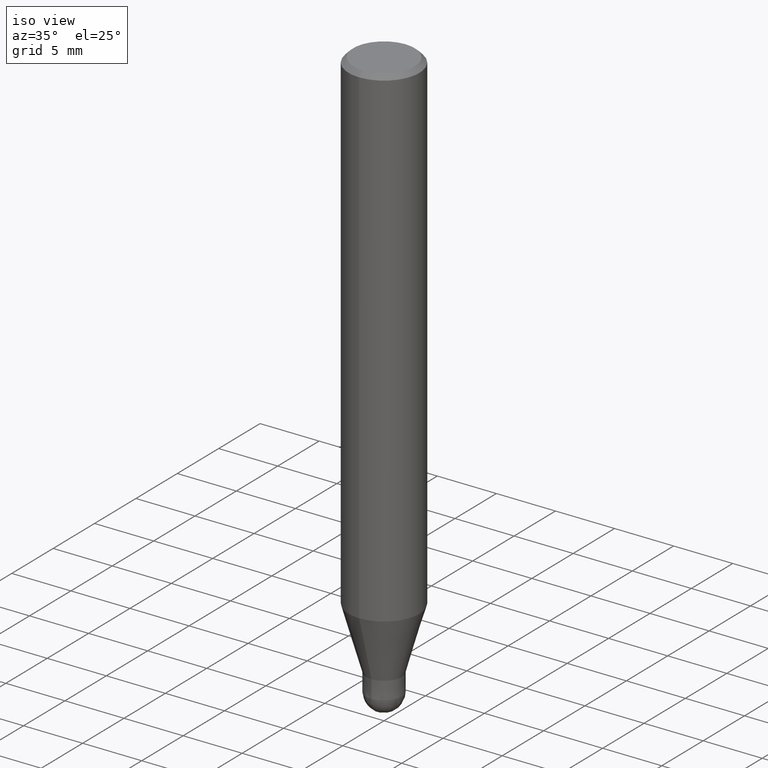
[diagram: clean part render]
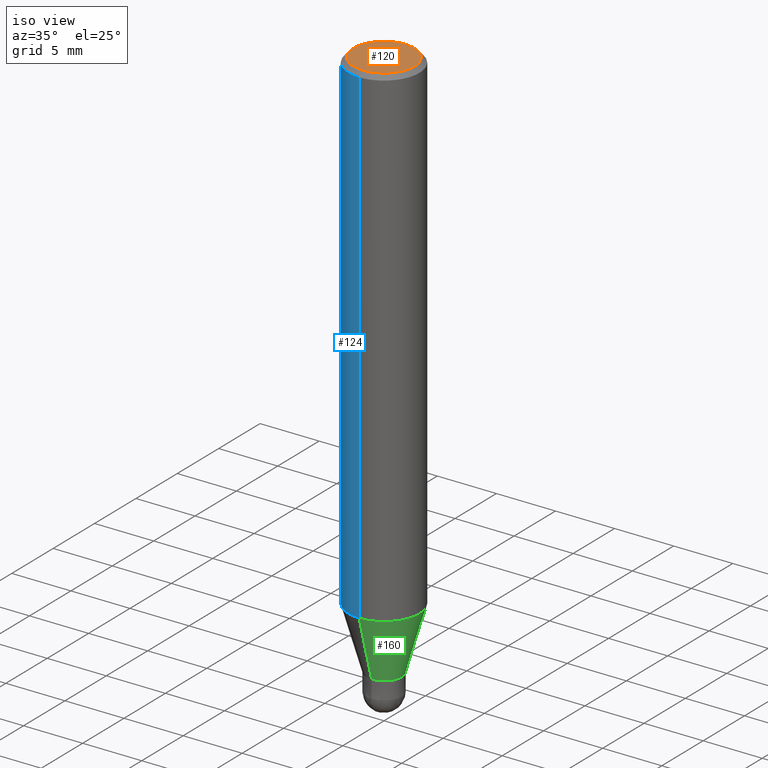
[diagram: same view with three faces highlighted in distinct colors, each labeled with its STEP entity id]
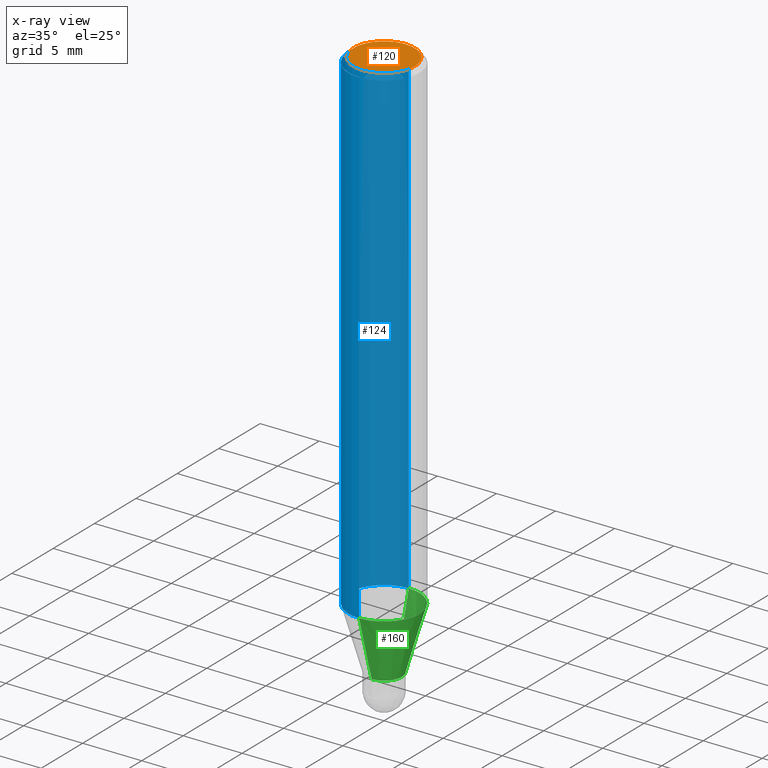
[diagram: x-ray of the same camera — body ghosted, the three highlighted faces saturated]
A machine part, iso view with three faces highlighted in distinct colors.
The next image is the same camera in x-ray (body ghosted, the three faces saturated) — at least one of them is partly hidden behind the body in this view.
Their STEP definitions:

[orange] entity #120 — the highlighted planar face has unit normal (-0, 0, 1).
#100=EDGE_CURVE('',#114,#134,#225,.T.);
#114=VERTEX_POINT('',#241);
#120=ADVANCED_FACE('',(#247),#248,.T.);
#134=VERTEX_POINT('',#263);
#180=EDGE_CURVE('',#134,#114,#317,.T.);
#225=CIRCLE('',#363,2.6);
#241=CARTESIAN_POINT('',(3.18397651993818E-016,-2.6,0.0));
#247=FACE_OUTER_BOUND('',#389,.T.);
#248=PLANE('',#390);
#263=CARTESIAN_POINT('',(0.0,2.6,0.0));
#317=CIRCLE('',#475,2.6);
#363=AXIS2_PLACEMENT_3D('',#503,#504,#505);
#389=EDGE_LOOP('',(#527,#528));
#390=AXIS2_PLACEMENT_3D('',#529,#530,#531);
#475=AXIS2_PLACEMENT_3D('',#621,#622,#623);
#503=CARTESIAN_POINT('',(0.0,0.0,0.0));
#504=DIRECTION('',(0.0,0.0,-1.0));
#505=DIRECTION('',(0.0,1.0,0.0));
#527=ORIENTED_EDGE('',*,*,#180,.F.);
#528=ORIENTED_EDGE('',*,*,#100,.F.);
#529=CARTESIAN_POINT('',(0.0,1.3,0.0));
#530=DIRECTION('',(-0.0,0.0,1.0));
#531=DIRECTION('',(0.0,-1.0,0.0));
#621=CARTESIAN_POINT('',(0.0,0.0,0.0));
#622=DIRECTION('',(0.0,0.0,-1.0));
#623=DIRECTION('',(0.0,1.0,0.0));

[blue] entity #124 — the highlighted cylindrical surface (partial cylindrical patch) has radius 3 mm, axis along (-0, -0, 1).
#90=EDGE_CURVE('',#132,#168,#215,.T.);
#92=EDGE_CURVE('',#168,#102,#217,.T.);
#102=VERTEX_POINT('',#227);
#104=EDGE_CURVE('',#102,#112,#229,.T.);
#112=VERTEX_POINT('',#239);
#124=ADVANCED_FACE('',(#252),#253,.T.);
#132=VERTEX_POINT('',#261);
#168=VERTEX_POINT('',#304);
#188=EDGE_CURVE('',#132,#112,#327,.T.);
#215=LINE('',#349,#350);
#217=CIRCLE('',#353,3.0);
#227=CARTESIAN_POINT('',(0.0,3.0,-0.399999999999999));
#229=LINE('',#368,#369);
#239=CARTESIAN_POINT('',(0.0,3.0,-41.769));
#252=FACE_OUTER_BOUND('',#394,.T.);
#253=CYLINDRICAL_SURFACE('',#395,3.0);
#261=CARTESIAN_POINT('',(3.67381906146713E-016,-3.0,-41.769));
#304=CARTESIAN_POINT('',(3.67381906146713E-016,-3.0,-0.399999999999999));
#327=CIRCLE('',#488,3.0);
#349=CARTESIAN_POINT('',(3.67381906146713E-016,-3.0,-21.0845));
#350=VECTOR('',#496,1.0);
#353=AXIS2_PLACEMENT_3D('',#497,#498,#499);
#368=CARTESIAN_POINT('',(-3.67381906146713E-016,3.0,-21.0845));
#369=VECTOR('',#506,1.0);
#394=EDGE_LOOP('',(#533,#534,#535,#536));
#395=AXIS2_PLACEMENT_3D('',#537,#538,#539);
#488=AXIS2_PLACEMENT_3D('',#639,#640,#641);
#496=DIRECTION('',(-0.0,-0.0,1.0));
#497=CARTESIAN_POINT('',(0.0,0.0,-0.399999999999999));
#498=DIRECTION('',(0.0,0.0,-1.0));
#499=DIRECTION('',(0.0,1.0,0.0));
#506=DIRECTION('',(0.0,0.0,-1.0));
#533=ORIENTED_EDGE('',*,*,#104,.T.);
#534=ORIENTED_EDGE('',*,*,#188,.F.);
#535=ORIENTED_EDGE('',*,*,#90,.T.);
#536=ORIENTED_EDGE('',*,*,#92,.T.);
#537=CARTESIAN_POINT('',(0.0,0.0,-21.0845));
#538=DIRECTION('',(-0.0,-0.0,1.0));
#539=DIRECTION('',(0.0,1.0,0.0));
#639=CARTESIAN_POINT('',(0.0,0.0,-41.769));
#640=DIRECTION('',(0.0,0.0,-1.0));
#641=DIRECTION('',(0.0,1.0,0.0));

[green] entity #160 — the highlighted conical surface has half-angle 16 deg.
#88=VERTEX_POINT('',#213);
#94=VERTEX_POINT('',#219);
#98=VERTEX_POINT('',#223);
#108=EDGE_CURVE('',#98,#88,#234,.T.);
#126=EDGE_CURVE('',#94,#148,#255,.T.);
#144=EDGE_CURVE('',#88,#94,#274,.T.);
#148=VERTEX_POINT('',#280);
#160=ADVANCED_FACE('',(#294),#295,.T.);
#170=EDGE_CURVE('',#98,#148,#306,.T.);
#213=CARTESIAN_POINT('',(0.0,1.49995,-47.0));
#219=CARTESIAN_POINT('',(1.83684830041587E-016,-1.49995,-47.0));
#223=CARTESIAN_POINT('',(0.0,2.99995,-41.769));
#234=LINE('',#375,#376);
#255=LINE('',#398,#399);
#274=CIRCLE('',#422,1.49995);
#280=CARTESIAN_POINT('',(3.67375783114944E-016,-2.99995,-41.769));
#294=FACE_OUTER_BOUND('',#447,.T.);
#295=CONICAL_SURFACE('',#448,2.24995,0.279258842899557);
#306=CIRCLE('',#461,2.99995);
#375=CARTESIAN_POINT('',(-2.75530306578266E-016,2.24995,-44.3845));
#376=VECTOR('',#513,1.0);
#398=CARTESIAN_POINT('',(2.75530306578266E-016,-2.24995,-44.3845));
#399=VECTOR('',#540,1.0);
#422=AXIS2_PLACEMENT_3D('',#556,#557,#558);
#447=EDGE_LOOP('',(#587,#588,#589,#590));
#448=AXIS2_PLACEMENT_3D('',#591,#592,#593);
#461=AXIS2_PLACEMENT_3D('',#604,#605,#606);
#513=DIRECTION('',(3.37554511665357E-017,-0.275643279664314,-0.961259997282682));
#540=DIRECTION('',(3.37554511665357E-017,-0.275643279664314,0.961259997282682));
#556=CARTESIAN_POINT('',(0.0,0.0,-47.0));
#557=DIRECTION('',(0.0,0.0,-1.0));
#558=DIRECTION('',(0.0,1.0,0.0));
#587=ORIENTED_EDGE('',*,*,#108,.F.);
#588=ORIENTED_EDGE('',*,*,#170,.T.);
#589=ORIENTED_EDGE('',*,*,#126,.F.);
#590=ORIENTED_EDGE('',*,*,#144,.F.);
#591=CARTESIAN_POINT('',(0.0,0.0,-44.3845));
#592=DIRECTION('',(-0.0,-0.0,1.0));
#593=DIRECTION('',(0.0,1.0,0.0));
#604=CARTESIAN_POINT('',(0.0,0.0,-41.769));
#605=DIRECTION('',(0.0,0.0,-1.0));
#606=DIRECTION('',(0.0,1.0,0.0));